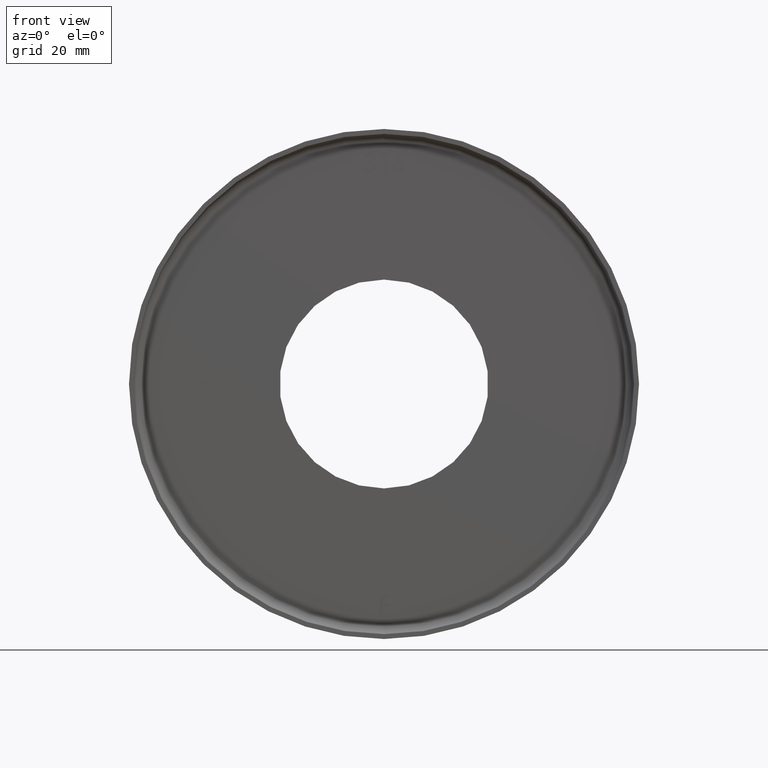
[diagram: clean part render]
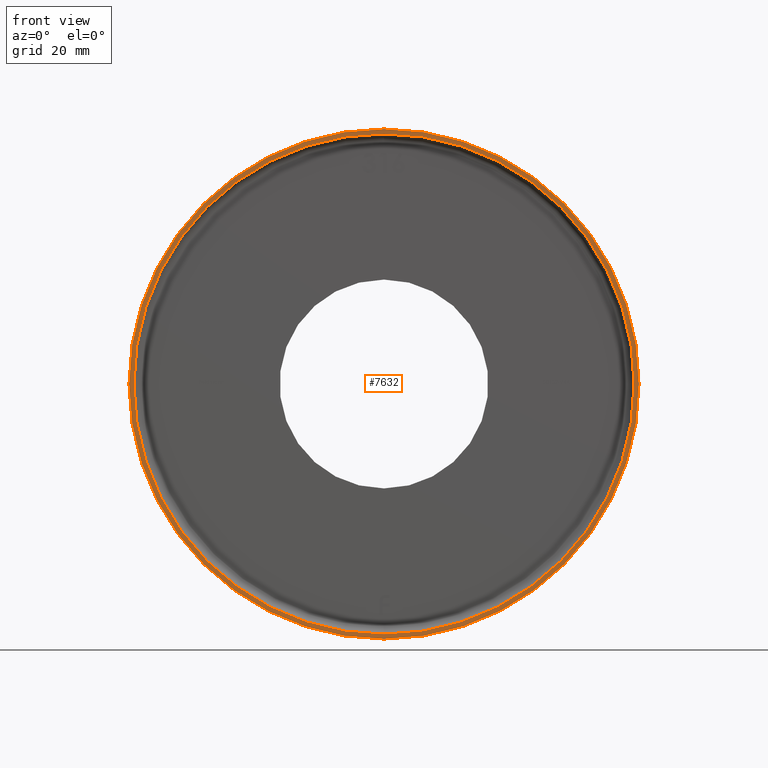
[diagram: same view with one face highlighted and labeled with its STEP entity id]
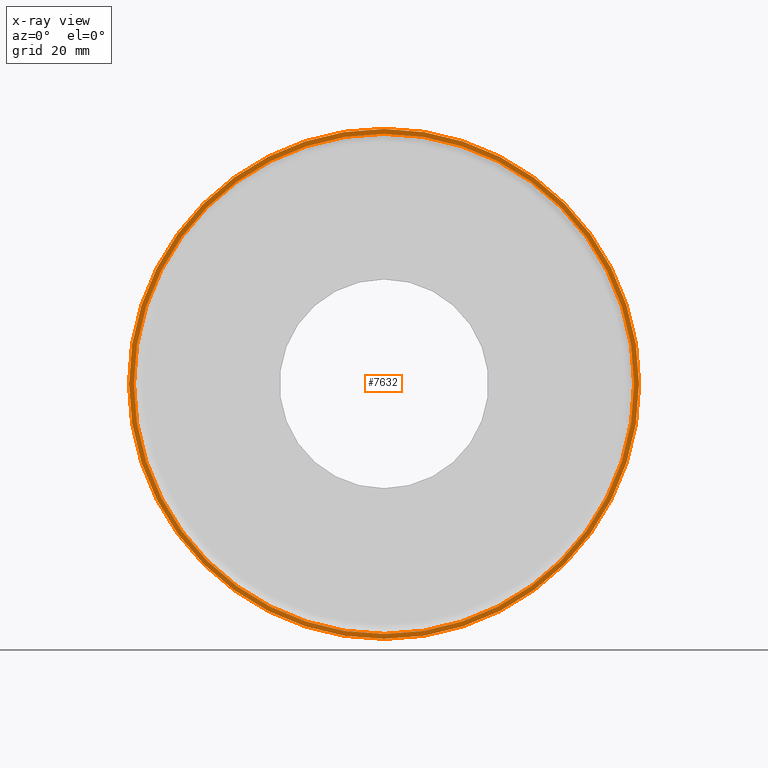
[diagram: x-ray of the same camera — body ghosted, the highlighted face saturated]
A machine part, front view. The second image highlights one B-rep face of the part: STEP entity #7632.
The next image is the same camera in x-ray: the body ghosted, the highlighted face saturated — about 0% of this face is hidden behind the body in this view.
In plain terms, the highlighted planar face has unit normal (0, -1, -0).
Its self-contained STEP definition (entity closure, byte-faithful):
#107 = CIRCLE ( 'NONE', #574, 51.50000000000000711 ) ;
#571 = EDGE_CURVE ( 'NONE', #3590, #3637, #3994, .T. ) ;
#574 = AXIS2_PLACEMENT_3D ( 'NONE', #13135, #950, #7530 ) ;
#950 = DIRECTION ( 'NONE',  ( -0.000000000000000000, -1.000000000000000000, -0.000000000000000000 ) ) ;
#966 = VERTEX_POINT ( 'NONE', #10664 ) ;
#1437 = DIRECTION ( 'NONE',  ( 0.000000000000000000, 0.000000000000000000, -1.000000000000000000 ) ) ;
#1881 = DIRECTION ( 'NONE',  ( 0.000000000000000000, 0.000000000000000000, -1.000000000000000000 ) ) ;
#2792 = EDGE_CURVE ( 'NONE', #3637, #3590, #12294, .T. ) ;
#2849 = ORIENTED_EDGE ( 'NONE', *, *, #571, .T. ) ;
#2972 = DIRECTION ( 'NONE',  ( 0.000000000000000000, -1.000000000000000000, -0.000000000000000000 ) ) ;
#3221 = EDGE_LOOP ( 'NONE', ( #12800, #10689 ) ) ;
#3279 = DIRECTION ( 'NONE',  ( -0.000000000000000000, -1.000000000000000000, -0.000000000000000000 ) ) ;
#3590 = VERTEX_POINT ( 'NONE', #13162 ) ;
#3610 = CIRCLE ( 'NONE', #6969, 51.50000000000000711 ) ;
#3637 = VERTEX_POINT ( 'NONE', #5729 ) ;
#3994 = CIRCLE ( 'NONE', #14021, 52.50000000000000711 ) ;
#5729 = CARTESIAN_POINT ( 'NONE',  ( 0.000000000000000000, 0.000000000000000000, -52.50000000000000711 ) ) ;
#5919 = VERTEX_POINT ( 'NONE', #10516 ) ;
#6111 = FACE_OUTER_BOUND ( 'NONE', #6244, .T. ) ;
#6185 = DIRECTION ( 'NONE',  ( 0.000000000000000000, 0.000000000000000000, -1.000000000000000000 ) ) ;
#6244 = EDGE_LOOP ( 'NONE', ( #8628, #2849 ) ) ;
#6969 = AXIS2_PLACEMENT_3D ( 'NONE', #10893, #3279, #7583 ) ;
#7530 = DIRECTION ( 'NONE',  ( 0.000000000000000000, 0.000000000000000000, -1.000000000000000000 ) ) ;
#7583 = DIRECTION ( 'NONE',  ( 0.000000000000000000, 0.000000000000000000, -1.000000000000000000 ) ) ;
#7632 = ADVANCED_FACE ( 'NONE', ( #6111, #9141 ), #8240, .T. ) ;
#7977 = CARTESIAN_POINT ( 'NONE',  ( 0.000000000000000000, 0.000000000000000000, 0.000000000000000000 ) ) ;
#8240 = PLANE ( 'NONE',  #13229 ) ;
#8628 = ORIENTED_EDGE ( 'NONE', *, *, #2792, .T. ) ;
#9141 = FACE_BOUND ( 'NONE', #3221, .T. ) ;
#9197 = EDGE_CURVE ( 'NONE', #966, #5919, #107, .T. ) ;
#10504 = CARTESIAN_POINT ( 'NONE',  ( 0.000000000000000000, 0.000000000000000000, 0.000000000000000000 ) ) ;
#10516 = CARTESIAN_POINT ( 'NONE',  ( 0.000000000000000000, -1.224646799147353207E-16, -51.50000000000000711 ) ) ;
#10567 = AXIS2_PLACEMENT_3D ( 'NONE', #7977, #12346, #1437 ) ;
#10664 = CARTESIAN_POINT ( 'NONE',  ( 6.306931015608869596E-15, -1.224646799147353207E-16, 51.50000000000000711 ) ) ;
#10689 = ORIENTED_EDGE ( 'NONE', *, *, #9197, .F. ) ;
#10893 = CARTESIAN_POINT ( 'NONE',  ( 0.000000000000000000, -1.224646799147353207E-16, 0.000000000000000000 ) ) ;
#12294 = CIRCLE ( 'NONE', #10567, 52.50000000000000711 ) ;
#12337 = EDGE_CURVE ( 'NONE', #5919, #966, #3610, .T. ) ;
#12346 = DIRECTION ( 'NONE',  ( -0.000000000000000000, -1.000000000000000000, -0.000000000000000000 ) ) ;
#12795 = CARTESIAN_POINT ( 'NONE',  ( 51.50000000000000711, -6.123233995736766036E-17, 0.000000000000000000 ) ) ;
#12799 = DIRECTION ( 'NONE',  ( -0.000000000000000000, -1.000000000000000000, -0.000000000000000000 ) ) ;
#12800 = ORIENTED_EDGE ( 'NONE', *, *, #12337, .F. ) ;
#13135 = CARTESIAN_POINT ( 'NONE',  ( 0.000000000000000000, -1.224646799147353207E-16, 0.000000000000000000 ) ) ;
#13162 = CARTESIAN_POINT ( 'NONE',  ( 6.429395695523604744E-15, 0.000000000000000000, 52.50000000000000711 ) ) ;
#13229 = AXIS2_PLACEMENT_3D ( 'NONE', #12795, #2972, #6185 ) ;
#14021 = AXIS2_PLACEMENT_3D ( 'NONE', #10504, #12799, #1881 ) ;